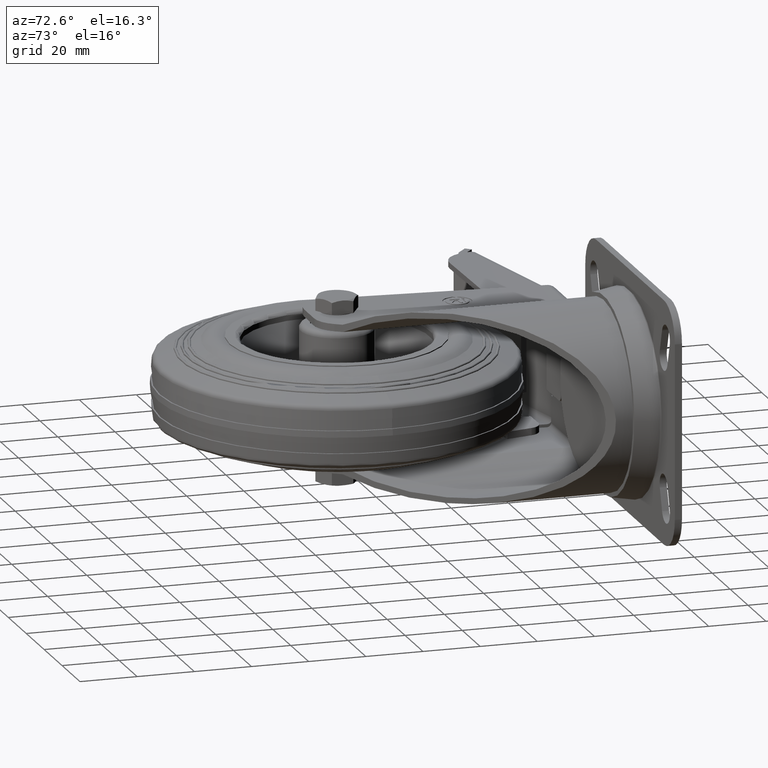
[diagram: clean part render]
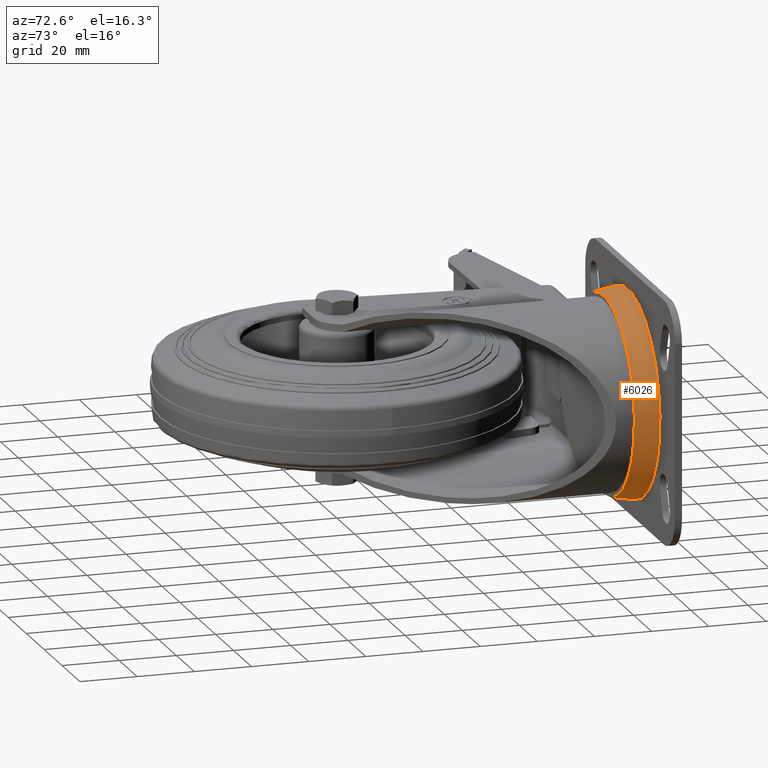
[diagram: same view with one face highlighted and labeled with its STEP entity id]
A machine part, auxiliary view. The second image highlights one B-rep face of the part: STEP entity #6026.
In plain terms, the highlighted conical surface has half-angle 10 deg.
Its self-contained STEP definition (entity closure, byte-faithful):
#96=CONICAL_SURFACE('',#6596,34.5012206633,0.1745329252);
#460=CIRCLE('',#6595,35.9999999993);
#461=CIRCLE('',#6597,34.5012206633);
#683=FACE_OUTER_BOUND('',#1066,.T.);
#1066=EDGE_LOOP('',(#4470,#4471,#4472,#4473));
#1478=LINE('',#9541,#2005);
#2005=VECTOR('',#7796,34.5012206633);
#2612=VERTEX_POINT('',#9537);
#2613=VERTEX_POINT('',#9540);
#3285=EDGE_CURVE('',#2612,#2612,#460,.T.);
#3286=EDGE_CURVE('',#2612,#2613,#1478,.T.);
#3287=EDGE_CURVE('',#2613,#2613,#461,.T.);
#4470=ORIENTED_EDGE('',*,*,#3285,.F.);
#4471=ORIENTED_EDGE('',*,*,#3286,.T.);
#4472=ORIENTED_EDGE('',*,*,#3287,.T.);
#4473=ORIENTED_EDGE('',*,*,#3286,.F.);
#6026=ADVANCED_FACE('',(#683),#96,.T.);
#6595=AXIS2_PLACEMENT_3D('',#9538,#7792,#7793);
#6596=AXIS2_PLACEMENT_3D('',#9539,#7794,#7795);
#6597=AXIS2_PLACEMENT_3D('',#9542,#7797,#7798);
#7792=DIRECTION('center_axis',(0.,1.,0.));
#7793=DIRECTION('ref_axis',(0.,0.,1.));
#7794=DIRECTION('center_axis',(0.,1.,0.));
#7795=DIRECTION('ref_axis',(0.,0.,1.));
#7796=DIRECTION('',(2.12657684958261E-17,-0.98480775301211,0.173648177667489));
#7797=DIRECTION('center_axis',(0.,1.,0.));
#7798=DIRECTION('ref_axis',(0.,0.,1.));
#9537=CARTESIAN_POINT('',(37.,90.1999999999951,-35.9999999993261));
#9538=CARTESIAN_POINT('Origin',(37.,90.1999999999997,0.));
#9539=CARTESIAN_POINT('Origin',(37.,81.6999999999997,0.));
#9540=CARTESIAN_POINT('',(37.,81.6999999999997,-34.5012206633));
#9541=CARTESIAN_POINT('',(37.,81.6999999999997,-34.5012206633));
#9542=CARTESIAN_POINT('Origin',(37.,81.6999999999997,0.));